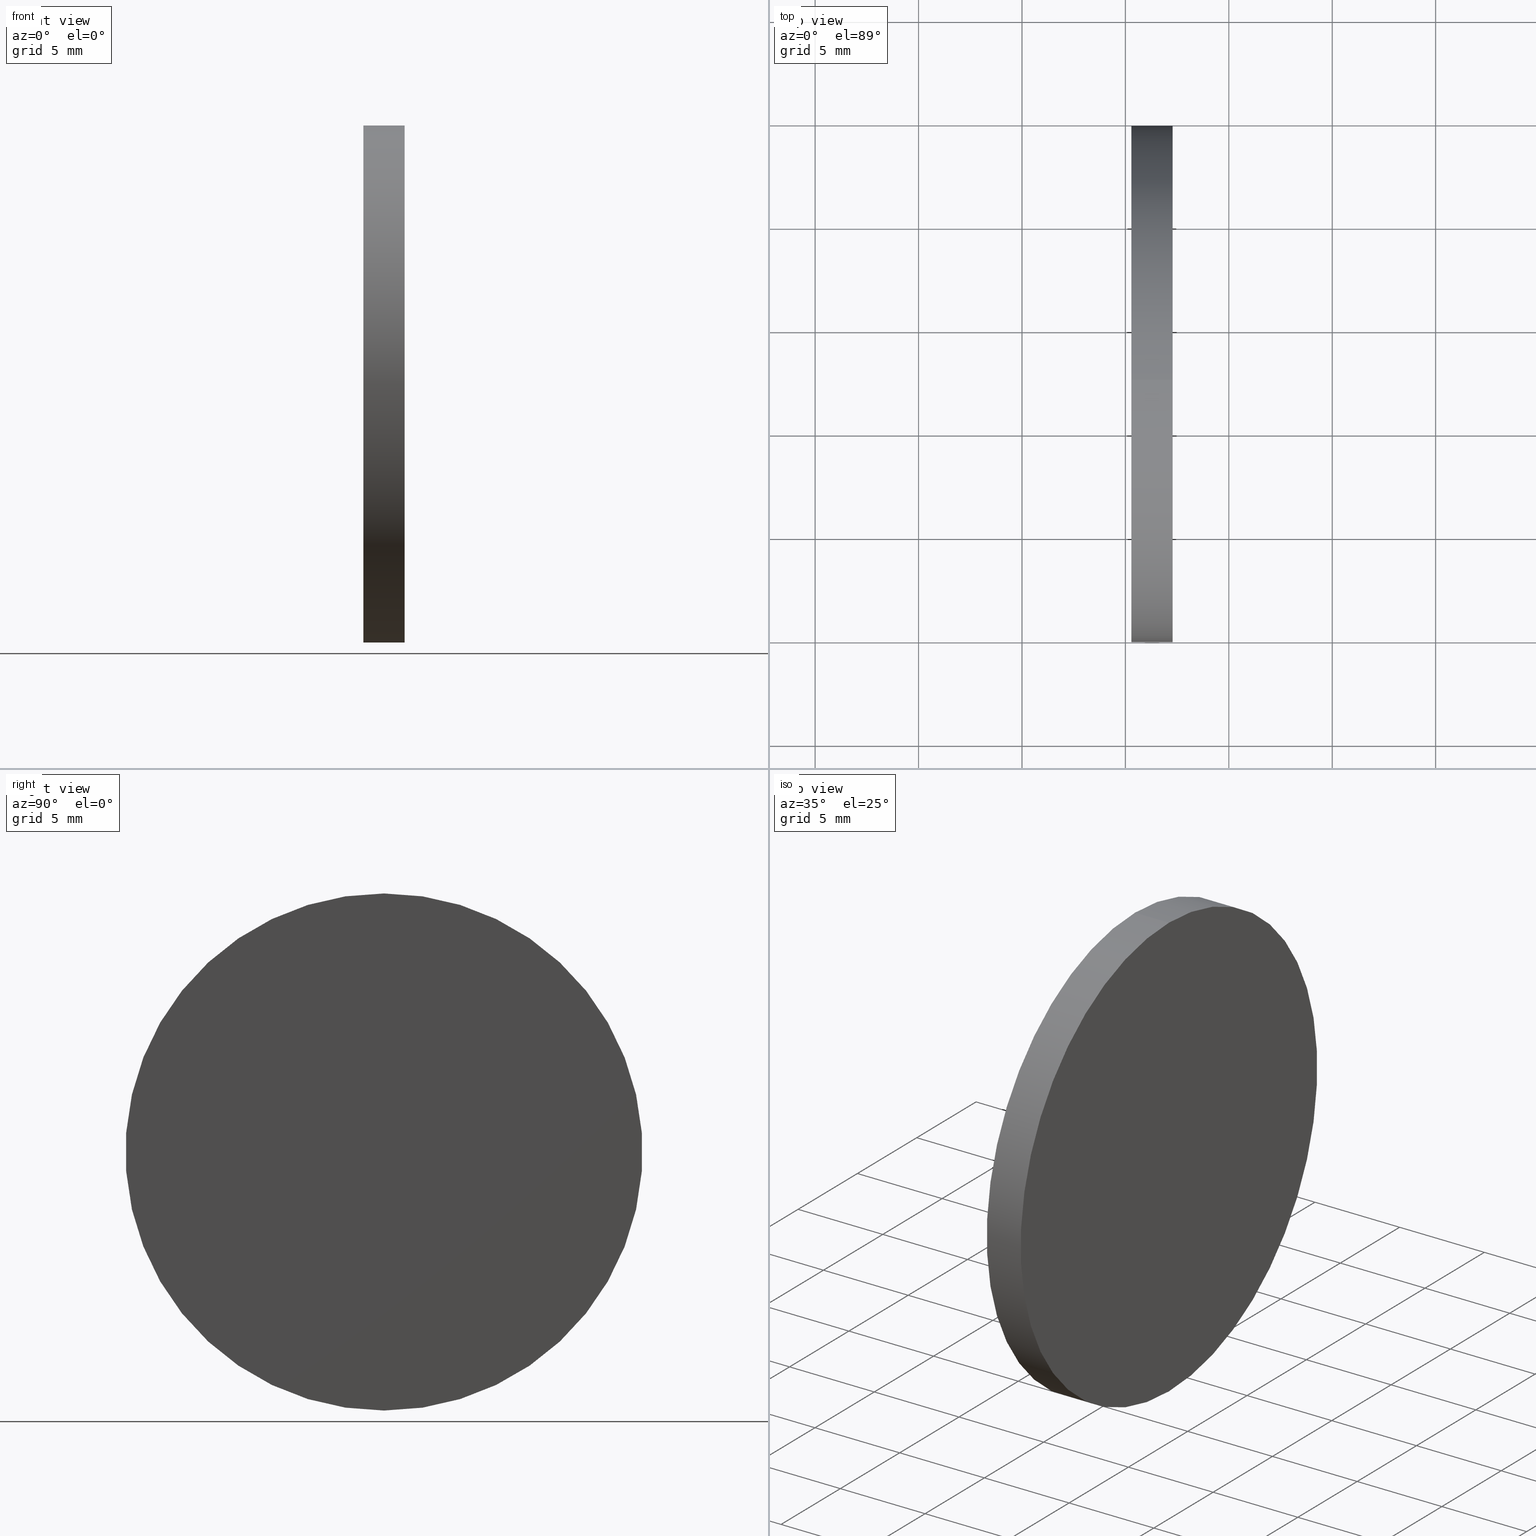
[diagram: canonical four-view strip — front | top / right | iso, engineering-drawing reading convention]
A machine part, canonical four-view strip (front | top / right | iso — engineering-drawing reading convention). The complete STEP part file that produces these views, byte-faithful:
ISO-10303-21;
HEADER;
FILE_DESCRIPTION (( 'STEP AP214' ),
    '1' );
FILE_NAME ('260007.STEP',
    '2019-07-15T03:22:31',
    ( '' ),
    ( '' ),
    'SwSTEP 2.0',
    'SolidWorks 2016',
    '' );
FILE_SCHEMA (( 'AUTOMOTIVE_DESIGN' ));
ENDSEC;

DATA;
#1 = CARTESIAN_POINT ( 'NONE',  ( 254.0008019926160300, 77.29317934901541800, 12.49999999999999600 ) ) ;
#2 = SURFACE_SIDE_STYLE ('',( #136 ) ) ;
#3 = PRODUCT_DEFINITION_CONTEXT ( 'detailed design', #73, 'design' ) ;
#4 = SURFACE_SIDE_STYLE ('',( #66 ) ) ;
#5 = CARTESIAN_POINT ( 'NONE',  ( 262.2862081684760400, 77.29317934901541800, -12.49999999999999600 ) ) ;
#6 = CYLINDRICAL_SURFACE ( 'NONE', #112, 12.49999999999999600 ) ;
#7 = DIRECTION ( 'NONE',  ( -1.000000000000000000, -0.0000000000000000000, -0.0000000000000000000 ) ) ;
#8 = EDGE_CURVE ( 'NONE', #116, #58, #118, .T. ) ;
#9 =( NAMED_UNIT ( * ) SI_UNIT ( $, .STERADIAN. ) SOLID_ANGLE_UNIT ( ) );
#10 = DIRECTION ( 'NONE',  ( 0.0000000000000000000, 0.0000000000000000000, 1.000000000000000000 ) ) ;
#11 = CARTESIAN_POINT ( 'NONE',  ( 254.0008019926160300, 77.29317934901541800, 0.0000000000000000000 ) ) ;
#12 = COLOUR_RGB ( '',1.000000000000000000, 1.000000000000000000, 1.000000000000000000 ) ;
#13 = PRODUCT_CONTEXT ( 'NONE', #109, 'mechanical' ) ;
#14 = PLANE ( 'NONE',  #41 ) ;
#15 =( NAMED_UNIT ( * ) PLANE_ANGLE_UNIT ( ) SI_UNIT ( $, .RADIAN. ) );
#16 = MECHANICAL_DESIGN_GEOMETRIC_PRESENTATION_REPRESENTATION (  '', ( #133 ), #139 ) ;
#17 = CYLINDRICAL_SURFACE ( 'NONE', #31, 12.49999999999999600 ) ;
#18 = SHAPE_DEFINITION_REPRESENTATION ( #79, #22 ) ;
#19 =( NAMED_UNIT ( * ) PLANE_ANGLE_UNIT ( ) SI_UNIT ( $, .RADIAN. ) );
#20 = EDGE_LOOP ( 'NONE', ( #140, #102 ) ) ;
#21 = DIRECTION ( 'NONE',  ( -1.000000000000000000, -0.0000000000000000000, -0.0000000000000000000 ) ) ;
#22 = ADVANCED_BREP_SHAPE_REPRESENTATION ( '260007', ( #75, #37 ), #54 ) ;
#23 = ORIENTED_EDGE ( 'NONE', *, *, #8, .T. ) ;
#24 = SURFACE_STYLE_USAGE ( .BOTH. , #2 ) ;
#25 = AXIS2_PLACEMENT_3D ( 'NONE', #121, #45, #82 ) ;
#26 = DIRECTION ( 'NONE',  ( 1.000000000000000000, 0.0000000000000000000, 0.0000000000000000000 ) ) ;
#27 = PRESENTATION_STYLE_ASSIGNMENT (( #61 ) ) ;
#28 = ADVANCED_FACE ( 'NONE', ( #43 ), #34, .F. ) ;
#29 = ORIENTED_EDGE ( 'NONE', *, *, #117, .F. ) ;
#30 = CARTESIAN_POINT ( 'NONE',  ( 254.0008019926160300, 77.29317934901541800, -12.49999999999999600 ) ) ;
#31 = AXIS2_PLACEMENT_3D ( 'NONE', #11, #71, #96 ) ;
#32 = MECHANICAL_DESIGN_GEOMETRIC_PRESENTATION_REPRESENTATION (  '', ( #42 ), #48 ) ;
#33 = CARTESIAN_POINT ( 'NONE',  ( 260.2862081684760400, 77.29317934901541800, 12.49999999999999600 ) ) ;
#34 = PLANE ( 'NONE',  #25 ) ;
#35 = ORIENTED_EDGE ( 'NONE', *, *, #65, .T. ) ;
#36 = FACE_OUTER_BOUND ( 'NONE', #95, .T. ) ;
#37 = AXIS2_PLACEMENT_3D ( 'NONE', #137, #85, #26 ) ;
#38 = ADVANCED_FACE ( 'NONE', ( #72 ), #17, .T. ) ;
#39 = CARTESIAN_POINT ( 'NONE',  ( 260.2862081684760400, 77.29317934901541800, 0.0000000000000000000 ) ) ;
#40 = FACE_OUTER_BOUND ( 'NONE', #51, .T. ) ;
#41 = AXIS2_PLACEMENT_3D ( 'NONE', #39, #125, #130 ) ;
#42 = STYLED_ITEM ( 'NONE', ( #27 ), #22 ) ;
#43 = FACE_OUTER_BOUND ( 'NONE', #20, .T. ) ;
#44 = FILL_AREA_STYLE ('',( #57 ) ) ;
#45 = DIRECTION ( 'NONE',  ( -1.000000000000000000, 0.0000000000000000000, -0.0000000000000000000 ) ) ;
#46 = PRODUCT ( '260007', '260007', '', ( #13 ) ) ;
#47 = AXIS2_PLACEMENT_3D ( 'NONE', #67, #120, #128 ) ;
#48 =( GEOMETRIC_REPRESENTATION_CONTEXT ( 3 ) GLOBAL_UNCERTAINTY_ASSIGNED_CONTEXT ( ( #70 ) ) GLOBAL_UNIT_ASSIGNED_CONTEXT ( ( #138, #15, #62 ) ) REPRESENTATION_CONTEXT ( 'NONE', 'WORKASPACE' ) );
#49 = UNCERTAINTY_MEASURE_WITH_UNIT (LENGTH_MEASURE( 1.000000000000000100E-005 ), #129, 'distance_accuracy_value', 'NONE');
#50 = ORIENTED_EDGE ( 'NONE', *, *, #63, .T. ) ;
#51 = EDGE_LOOP ( 'NONE', ( #110, #35 ) ) ;
#52 = LINE ( 'NONE', #1, #134 ) ;
#53 = DIRECTION ( 'NONE',  ( -1.000000000000000000, -0.0000000000000000000, -0.0000000000000000000 ) ) ;
#54 =( GEOMETRIC_REPRESENTATION_CONTEXT ( 3 ) GLOBAL_UNCERTAINTY_ASSIGNED_CONTEXT ( ( #94 ) ) GLOBAL_UNIT_ASSIGNED_CONTEXT ( ( #115, #19, #104 ) ) REPRESENTATION_CONTEXT ( 'NONE', 'WORKASPACE' ) );
#55 = DIRECTION ( 'NONE',  ( 0.0000000000000000000, 0.0000000000000000000, 1.000000000000000000 ) ) ;
#56 = PRODUCT_RELATED_PRODUCT_CATEGORY ( 'part', '', ( #46 ) ) ;
#57 = FILL_AREA_STYLE_COLOUR ( '', #12 ) ;
#58 = VERTEX_POINT ( 'NONE', #103 ) ;
#59 = CARTESIAN_POINT ( 'NONE',  ( 262.2862081684760400, 77.29317934901541800, 0.0000000000000000000 ) ) ;
#60 = EDGE_CURVE ( 'NONE', #74, #123, #131, .T. ) ;
#61 = SURFACE_STYLE_USAGE ( .BOTH. , #4 ) ;
#62 =( NAMED_UNIT ( * ) SI_UNIT ( $, .STERADIAN. ) SOLID_ANGLE_UNIT ( ) );
#63 = EDGE_CURVE ( 'NONE', #58, #74, #52, .T. ) ;
#64 = ORIENTED_EDGE ( 'NONE', *, *, #107, .T. ) ;
#65 = EDGE_CURVE ( 'NONE', #123, #74, #84, .T. ) ;
#66 = SURFACE_STYLE_FILL_AREA ( #92 ) ;
#67 = CARTESIAN_POINT ( 'NONE',  ( 260.2862081684760400, 77.29317934901541800, 0.0000000000000000000 ) ) ;
#68 = DIRECTION ( 'NONE',  ( -1.000000000000000000, -0.0000000000000000000, -0.0000000000000000000 ) ) ;
#69 = ORIENTED_EDGE ( 'NONE', *, *, #117, .T. ) ;
#70 = UNCERTAINTY_MEASURE_WITH_UNIT (LENGTH_MEASURE( 1.000000000000000100E-005 ), #138, 'distance_accuracy_value', 'NONE');
#71 = DIRECTION ( 'NONE',  ( -1.000000000000000000, -0.0000000000000000000, -0.0000000000000000000 ) ) ;
#72 = FACE_OUTER_BOUND ( 'NONE', #114, .T. ) ;
#73 = APPLICATION_CONTEXT ( 'automotive_design' ) ;
#74 = VERTEX_POINT ( 'NONE', #33 ) ;
#75 = MANIFOLD_SOLID_BREP ( '��ת1', #77 ) ;
#76 = CARTESIAN_POINT ( 'NONE',  ( 262.2862081684760400, 77.29317934901541800, 0.0000000000000000000 ) ) ;
#77 = CLOSED_SHELL ( 'NONE', ( #38, #87, #100, #28 ) ) ;
#78 = PRESENTATION_STYLE_ASSIGNMENT (( #24 ) ) ;
#79 = PRODUCT_DEFINITION_SHAPE ( 'NONE', 'NONE',  #113 ) ;
#80 = AXIS2_PLACEMENT_3D ( 'NONE', #59, #135, #122 ) ;
#81 = DIRECTION ( 'NONE',  ( -1.000000000000000000, -0.0000000000000000000, -0.0000000000000000000 ) ) ;
#82 = DIRECTION ( 'NONE',  ( -0.0000000000000000000, 0.0000000000000000000, 1.000000000000000000 ) ) ;
#83 = ORIENTED_EDGE ( 'NONE', *, *, #60, .F. ) ;
#84 = CIRCLE ( 'NONE', #88, 12.49999999999999600 ) ;
#85 = DIRECTION ( 'NONE',  ( 0.0000000000000000000, 0.0000000000000000000, 1.000000000000000000 ) ) ;
#86 = CARTESIAN_POINT ( 'NONE',  ( 254.0008019926160300, 77.29317934901541800, 0.0000000000000000000 ) ) ;
#87 = ADVANCED_FACE ( 'NONE', ( #40 ), #14, .F. ) ;
#88 = AXIS2_PLACEMENT_3D ( 'NONE', #93, #21, #55 ) ;
#89 = ORIENTED_EDGE ( 'NONE', *, *, #63, .F. ) ;
#90 = DIRECTION ( 'NONE',  ( 0.0000000000000000000, 0.0000000000000000000, 1.000000000000000000 ) ) ;
#91 = FILL_AREA_STYLE_COLOUR ( '', #98 ) ;
#92 = FILL_AREA_STYLE ('',( #91 ) ) ;
#93 = CARTESIAN_POINT ( 'NONE',  ( 260.2862081684760400, 77.29317934901541800, 0.0000000000000000000 ) ) ;
#94 = UNCERTAINTY_MEASURE_WITH_UNIT (LENGTH_MEASURE( 1.000000000000000100E-005 ), #115, 'distance_accuracy_value', 'NONE');
#95 = EDGE_LOOP ( 'NONE', ( #29, #23, #50, #108 ) ) ;
#96 = DIRECTION ( 'NONE',  ( 0.0000000000000000000, 0.0000000000000000000, 1.000000000000000000 ) ) ;
#97 = PRESENTATION_LAYER_ASSIGNMENT (  '', '', ( #133 ) ) ;
#98 = COLOUR_RGB ( '',1.000000000000000000, 1.000000000000000000, 1.000000000000000000 ) ;
#99 = APPLICATION_PROTOCOL_DEFINITION ( 'draft international standard', 'automotive_design', 1998, #73 ) ;
#100 = ADVANCED_FACE ( 'NONE', ( #36 ), #6, .T. ) ;
#101 = LINE ( 'NONE', #30, #127 ) ;
#102 = ORIENTED_EDGE ( 'NONE', *, *, #8, .F. ) ;
#103 = CARTESIAN_POINT ( 'NONE',  ( 262.2862081684760400, 77.29317934901541800, 12.49999999999999600 ) ) ;
#104 =( NAMED_UNIT ( * ) SI_UNIT ( $, .STERADIAN. ) SOLID_ANGLE_UNIT ( ) );
#105 = AXIS2_PLACEMENT_3D ( 'NONE', #76, #53, #90 ) ;
#106 = PRODUCT_DEFINITION_FORMATION_WITH_SPECIFIED_SOURCE ( '�κ�', '', #46, .NOT_KNOWN. ) ;
#107 = EDGE_CURVE ( 'NONE', #58, #116, #126, .T. ) ;
#108 = ORIENTED_EDGE ( 'NONE', *, *, #65, .F. ) ;
#109 = APPLICATION_CONTEXT ( 'automotive_design' ) ;
#110 = ORIENTED_EDGE ( 'NONE', *, *, #60, .T. ) ;
#111 =( NAMED_UNIT ( * ) PLANE_ANGLE_UNIT ( ) SI_UNIT ( $, .RADIAN. ) );
#112 = AXIS2_PLACEMENT_3D ( 'NONE', #86, #81, #10 ) ;
#113 = PRODUCT_DEFINITION ( 'δ֪', '', #106, #3 ) ;
#114 = EDGE_LOOP ( 'NONE', ( #64, #69, #83, #89 ) ) ;
#115 =( LENGTH_UNIT ( ) NAMED_UNIT ( * ) SI_UNIT ( .MILLI., .METRE. ) );
#116 = VERTEX_POINT ( 'NONE', #5 ) ;
#117 = EDGE_CURVE ( 'NONE', #116, #123, #101, .T. ) ;
#118 = CIRCLE ( 'NONE', #80, 12.49999999999999600 ) ;
#119 = PRESENTATION_LAYER_ASSIGNMENT (  '', '', ( #42 ) ) ;
#120 = DIRECTION ( 'NONE',  ( -1.000000000000000000, -0.0000000000000000000, -0.0000000000000000000 ) ) ;
#121 = CARTESIAN_POINT ( 'NONE',  ( 262.2862081684760400, 89.79317934901541800, 0.0000000000000000000 ) ) ;
#122 = DIRECTION ( 'NONE',  ( 0.0000000000000000000, 0.0000000000000000000, 1.000000000000000000 ) ) ;
#123 = VERTEX_POINT ( 'NONE', #132 ) ;
#124 = APPLICATION_PROTOCOL_DEFINITION ( 'draft international standard', 'automotive_design', 1998, #109 ) ;
#125 = DIRECTION ( 'NONE',  ( 1.000000000000000000, 0.0000000000000000000, 0.0000000000000000000 ) ) ;
#126 = CIRCLE ( 'NONE', #105, 12.49999999999999600 ) ;
#127 = VECTOR ( 'NONE', #7, 1000.000000000000000 ) ;
#128 = DIRECTION ( 'NONE',  ( 0.0000000000000000000, 0.0000000000000000000, 1.000000000000000000 ) ) ;
#129 =( LENGTH_UNIT ( ) NAMED_UNIT ( * ) SI_UNIT ( .MILLI., .METRE. ) );
#130 = DIRECTION ( 'NONE',  ( 0.0000000000000000000, 0.0000000000000000000, -1.000000000000000000 ) ) ;
#131 = CIRCLE ( 'NONE', #47, 12.49999999999999600 ) ;
#132 = CARTESIAN_POINT ( 'NONE',  ( 260.2862081684760400, 77.29317934901541800, -12.49999999999999600 ) ) ;
#133 = STYLED_ITEM ( 'NONE', ( #78 ), #75 ) ;
#134 = VECTOR ( 'NONE', #68, 1000.000000000000000 ) ;
#135 = DIRECTION ( 'NONE',  ( -1.000000000000000000, -0.0000000000000000000, -0.0000000000000000000 ) ) ;
#136 = SURFACE_STYLE_FILL_AREA ( #44 ) ;
#137 = CARTESIAN_POINT ( 'NONE',  ( 0.0000000000000000000, 0.0000000000000000000, 0.0000000000000000000 ) ) ;
#138 =( LENGTH_UNIT ( ) NAMED_UNIT ( * ) SI_UNIT ( .MILLI., .METRE. ) );
#139 =( GEOMETRIC_REPRESENTATION_CONTEXT ( 3 ) GLOBAL_UNCERTAINTY_ASSIGNED_CONTEXT ( ( #49 ) ) GLOBAL_UNIT_ASSIGNED_CONTEXT ( ( #129, #111, #9 ) ) REPRESENTATION_CONTEXT ( 'NONE', 'WORKASPACE' ) );
#140 = ORIENTED_EDGE ( 'NONE', *, *, #107, .F. ) ;
ENDSEC;
END-ISO-10303-21;
